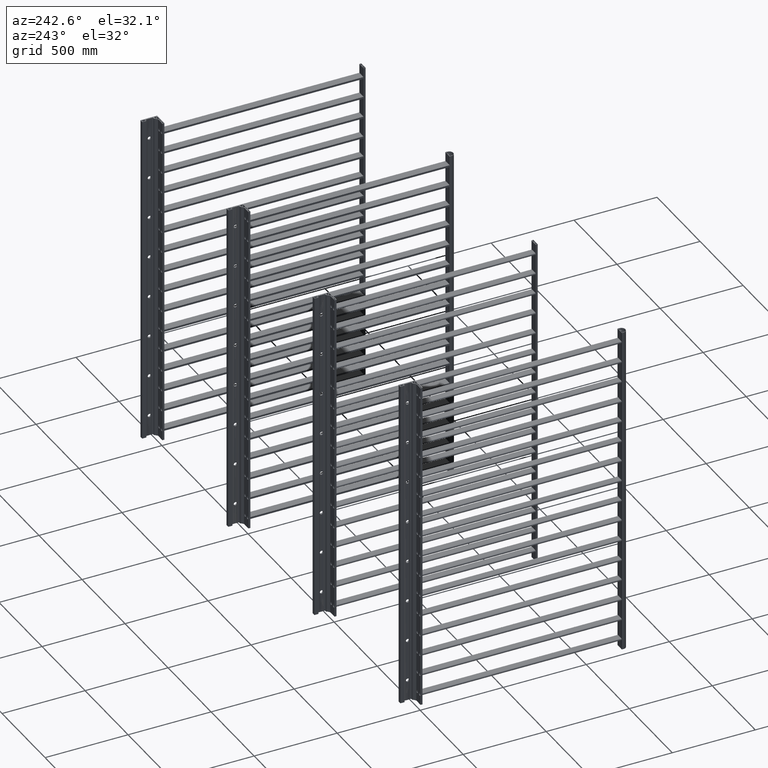
[diagram: clean part render]
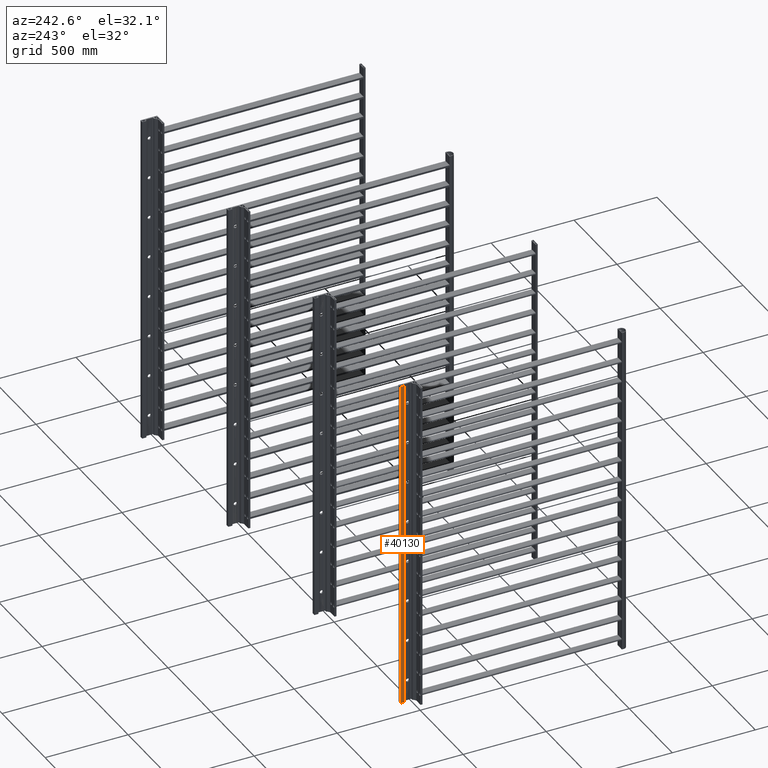
[diagram: same view with one face highlighted and labeled with its STEP entity id]
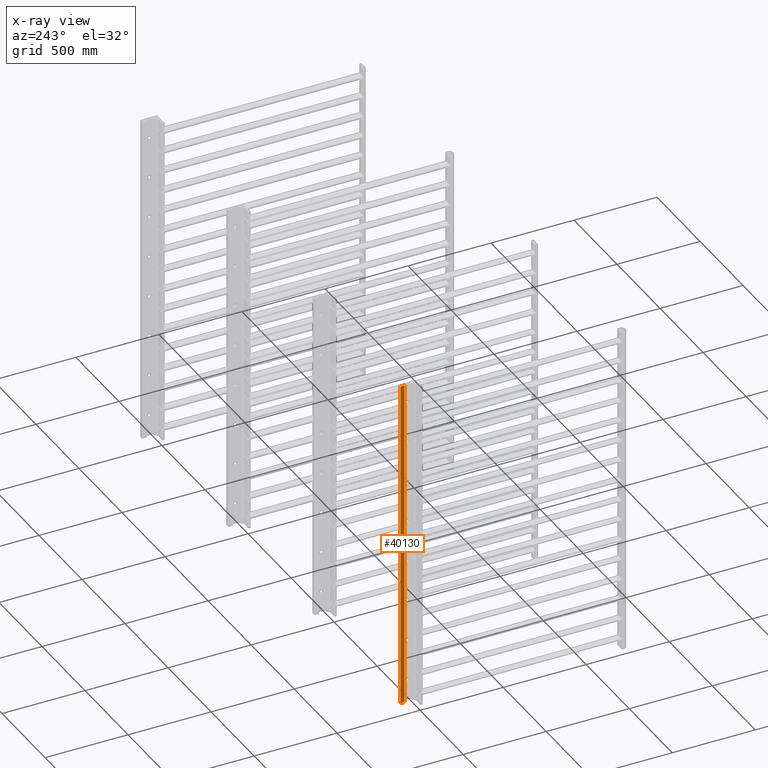
[diagram: x-ray of the same camera — body ghosted, the highlighted face saturated]
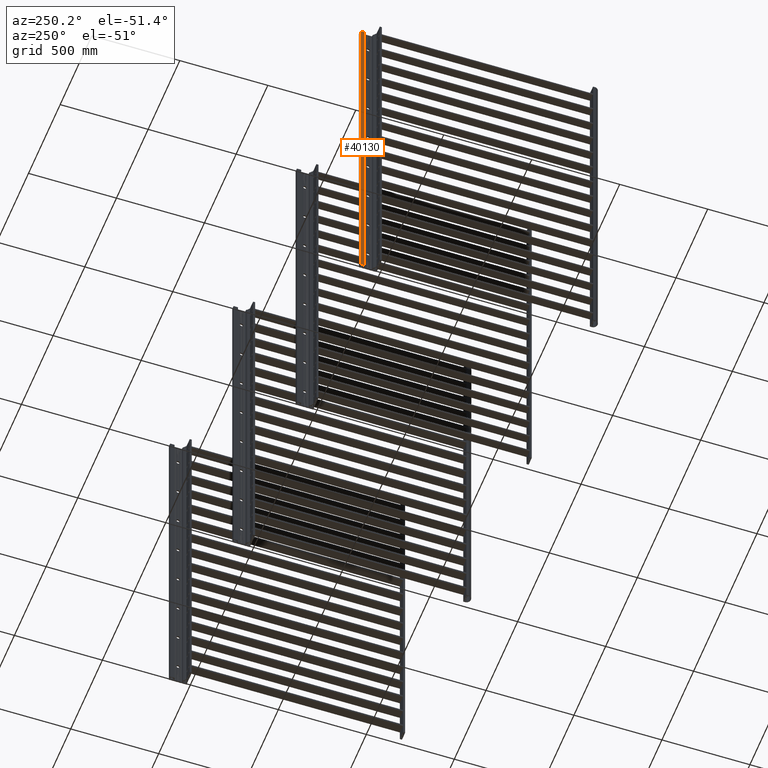
[diagram: same view with one face highlighted and labeled with its STEP entity id]
A machine part, auxiliary view. The second image highlights one B-rep face of the part: STEP entity #40130.
The next image is the same camera in x-ray: the body ghosted, the highlighted face saturated — about 0% of this face is hidden behind the body in this view.
A second angle (auxiliary view) of the same face is appended — the face is thin or edge-on in the first view.
In plain terms, the highlighted planar face has unit normal (-1, 0, -0).
Its self-contained STEP definition (entity closure, byte-faithful):
#1249=PLANE('',#43962);
#3676=LINE('',#75894,#6625);
#3677=LINE('',#75897,#6626);
#3678=LINE('',#75899,#6627);
#3679=LINE('',#75900,#6628);
#6625=VECTOR('',#53902,10.);
#6626=VECTOR('',#53905,10.);
#6627=VECTOR('',#53906,10.);
#6628=VECTOR('',#53907,10.);
#10010=FACE_OUTER_BOUND('',#12187,.T.);
#12187=EDGE_LOOP('',(#33650,#33651,#33652,#33653));
#17959=VERTEX_POINT('',#75890);
#17960=VERTEX_POINT('',#75892);
#17961=VERTEX_POINT('',#75896);
#17962=VERTEX_POINT('',#75898);
#23650=EDGE_CURVE('',#17959,#17960,#3676,.T.);
#23651=EDGE_CURVE('',#17961,#17959,#3677,.T.);
#23652=EDGE_CURVE('',#17962,#17960,#3678,.T.);
#23653=EDGE_CURVE('',#17961,#17962,#3679,.T.);
#33650=ORIENTED_EDGE('',*,*,#23651,.T.);
#33651=ORIENTED_EDGE('',*,*,#23650,.T.);
#33652=ORIENTED_EDGE('',*,*,#23652,.F.);
#33653=ORIENTED_EDGE('',*,*,#23653,.F.);
#40130=ADVANCED_FACE('',(#10010),#1249,.T.);
#43962=AXIS2_PLACEMENT_3D('',#75895,#53903,#53904);
#53902=DIRECTION('',(0.,0.,1.));
#53903=DIRECTION('center_axis',(-1.,0.,0.));
#53904=DIRECTION('ref_axis',(0.,-1.,0.));
#53905=DIRECTION('',(0.,-1.,0.));
#53906=DIRECTION('',(0.,-1.,0.));
#53907=DIRECTION('',(0.,0.,1.));
#75890=CARTESIAN_POINT('',(65.0790484550112,77.1433258091984,1.));
#75892=CARTESIAN_POINT('',(65.0790484550112,77.1433258091984,1999.));
#75894=CARTESIAN_POINT('',(65.0790484550112,77.1433258091984,0.));
#75895=CARTESIAN_POINT('Origin',(65.0790484550112,99.7433258091987,0.));
#75896=CARTESIAN_POINT('',(65.0790484550112,99.7433258091987,1.));
#75897=CARTESIAN_POINT('',(65.0790484550112,99.7433258091987,1.));
#75898=CARTESIAN_POINT('',(65.0790484550112,99.7433258091987,1999.));
#75899=CARTESIAN_POINT('',(65.0790484550112,99.7433258091987,1999.));
#75900=CARTESIAN_POINT('',(65.0790484550112,99.7433258091987,0.));